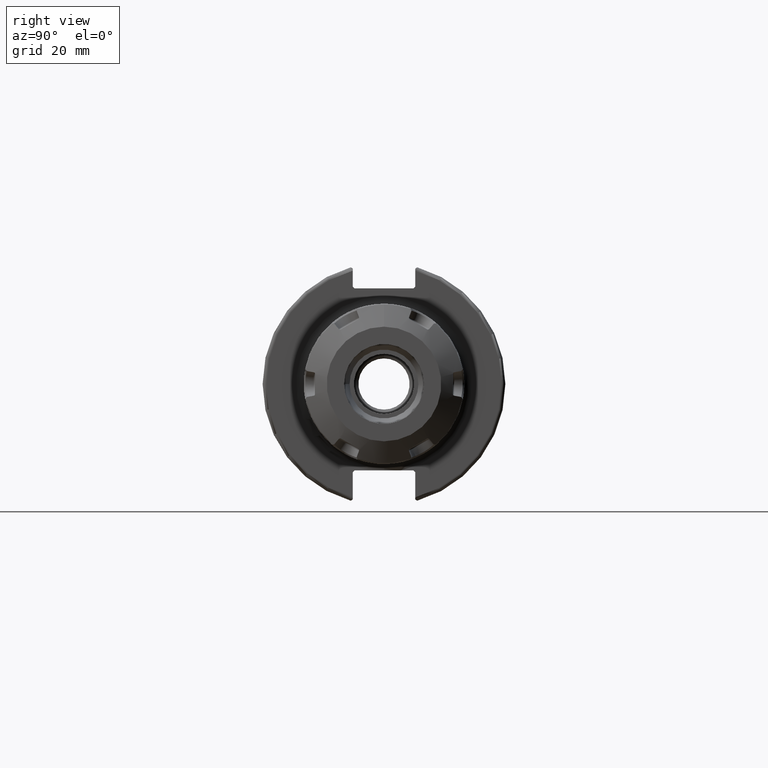
[diagram: clean part render]
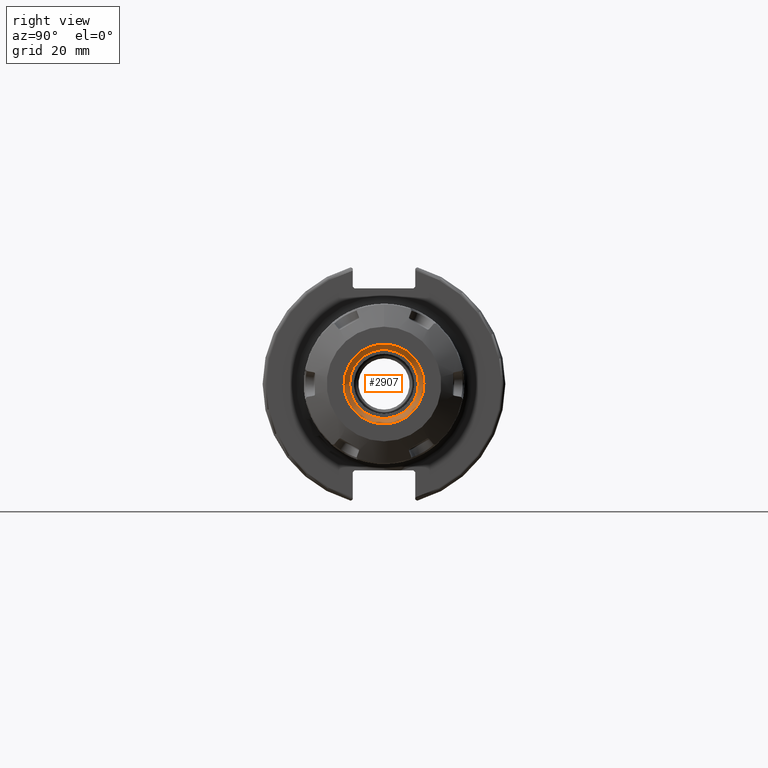
[diagram: same view with one face highlighted and labeled with its STEP entity id]
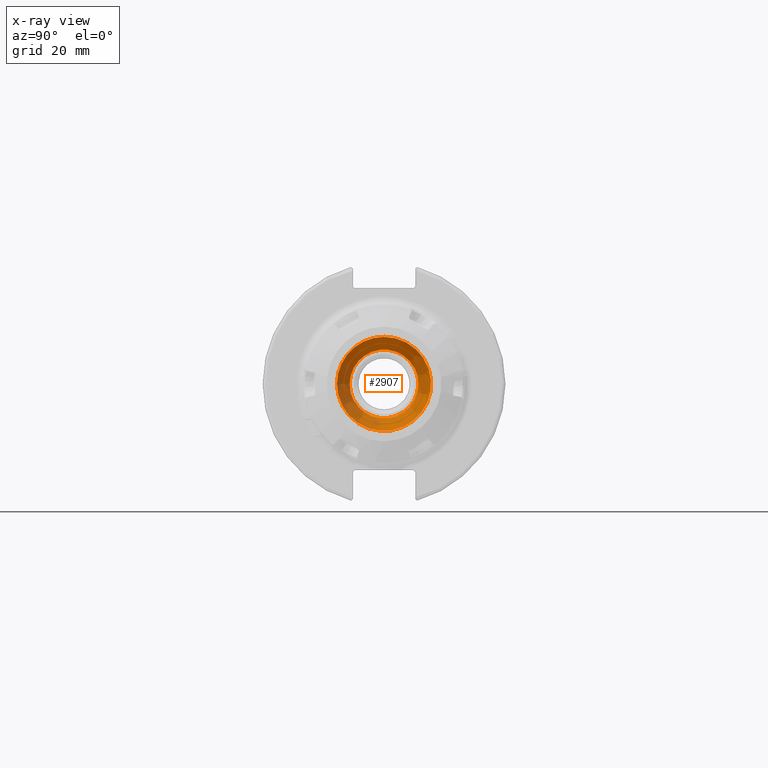
[diagram: x-ray of the same camera — body ghosted, the highlighted face saturated]
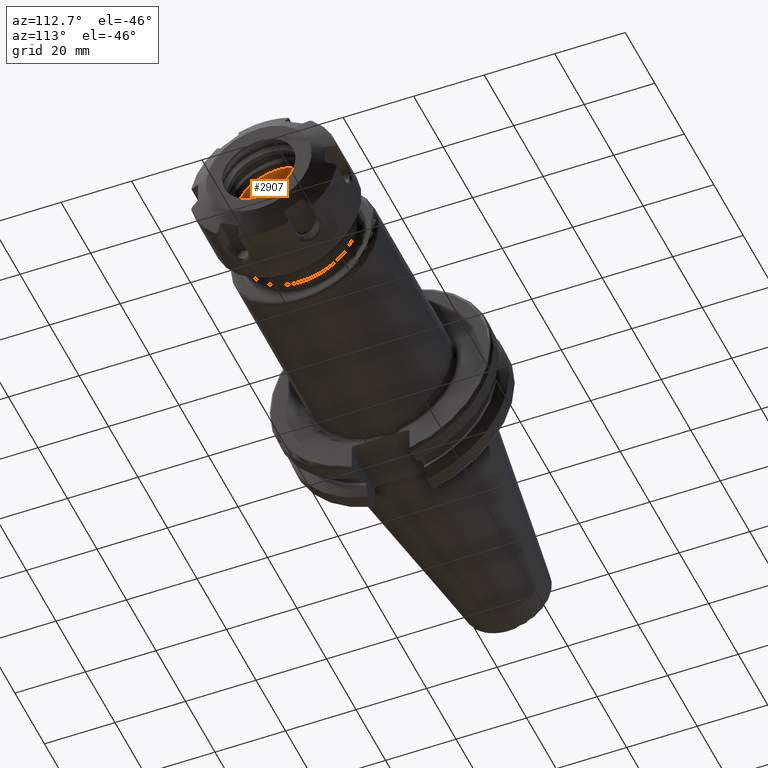
[diagram: same view with one face highlighted and labeled with its STEP entity id]
A machine part, right view. The second image highlights one B-rep face of the part: STEP entity #2907.
The next image is the same camera in x-ray: the body ghosted, the highlighted face saturated — about 9% of this face is hidden behind the body in this view.
A second angle (auxiliary view) of the same face is appended — the face is thin or edge-on in the first view.
In plain terms, the highlighted conical surface has half-angle 8 deg.
Its self-contained STEP definition (entity closure, byte-faithful):
#404=FACE_OUTER_BOUND('',#575,.T.);
#575=EDGE_LOOP('',(#2022,#2023,#2024,#2025,#2026));
#763=LINE('',#4336,#950);
#950=VECTOR('',#3514,10.75);
#1143=CIRCLE('',#3162,12.318528003612);
#1144=CIRCLE('',#3163,12.318528003612);
#1146=CIRCLE('',#3166,9.);
#1278=VERTEX_POINT('',#4329);
#1279=VERTEX_POINT('',#4330);
#1280=VERTEX_POINT('',#4335);
#1567=EDGE_CURVE('',#1278,#1279,#1143,.T.);
#1568=EDGE_CURVE('',#1279,#1278,#1144,.T.);
#1570=EDGE_CURVE('',#1279,#1280,#763,.T.);
#1571=EDGE_CURVE('',#1280,#1280,#1146,.T.);
#2022=ORIENTED_EDGE('',*,*,#1567,.F.);
#2023=ORIENTED_EDGE('',*,*,#1568,.F.);
#2024=ORIENTED_EDGE('',*,*,#1570,.T.);
#2025=ORIENTED_EDGE('',*,*,#1571,.F.);
#2026=ORIENTED_EDGE('',*,*,#1570,.F.);
#2881=CONICAL_SURFACE('',#3165,10.75,0.139626340159547);
#2907=ADVANCED_FACE('',(#404),#2881,.F.);
#3162=AXIS2_PLACEMENT_3D('',#4331,#3506,#3507);
#3163=AXIS2_PLACEMENT_3D('',#4332,#3508,#3509);
#3165=AXIS2_PLACEMENT_3D('',#4334,#3512,#3513);
#3166=AXIS2_PLACEMENT_3D('',#4337,#3515,#3516);
#3506=DIRECTION('center_axis',(-1.,0.,0.));
#3507=DIRECTION('ref_axis',(0.,-1.,3.06161699786838E-17));
#3508=DIRECTION('center_axis',(-1.,0.,0.));
#3509=DIRECTION('ref_axis',(0.,-1.,3.06161699786838E-17));
#3512=DIRECTION('center_axis',(1.,0.,0.));
#3513=DIRECTION('ref_axis',(0.,1.,0.));
#3514=DIRECTION('',(-0.99026806874157,0.139173100960066,1.70437892618156E-17));
#3515=DIRECTION('center_axis',(1.,0.,0.));
#3516=DIRECTION('ref_axis',(0.,0.,-1.));
#4329=CARTESIAN_POINT('',(88.3087596514401,-1.50858458898304E-15,12.318528003612));
#4330=CARTESIAN_POINT('',(88.3087596514401,-12.318528003612,-1.50858458898305E-15));
#4331=CARTESIAN_POINT('Origin',(88.3087596514401,0.,-1.88573073622881E-15));
#4332=CARTESIAN_POINT('Origin',(88.3087596514401,0.,-1.88573073622881E-15));
#4334=CARTESIAN_POINT('Origin',(77.1481029858276,0.,0.));
#4335=CARTESIAN_POINT('',(64.6962059716553,-9.,-1.10218211923262E-15));
#4336=CARTESIAN_POINT('',(77.1481029858276,-10.75,-1.3164953090834E-15));
#4337=CARTESIAN_POINT('Origin',(64.6962059716553,0.,0.));